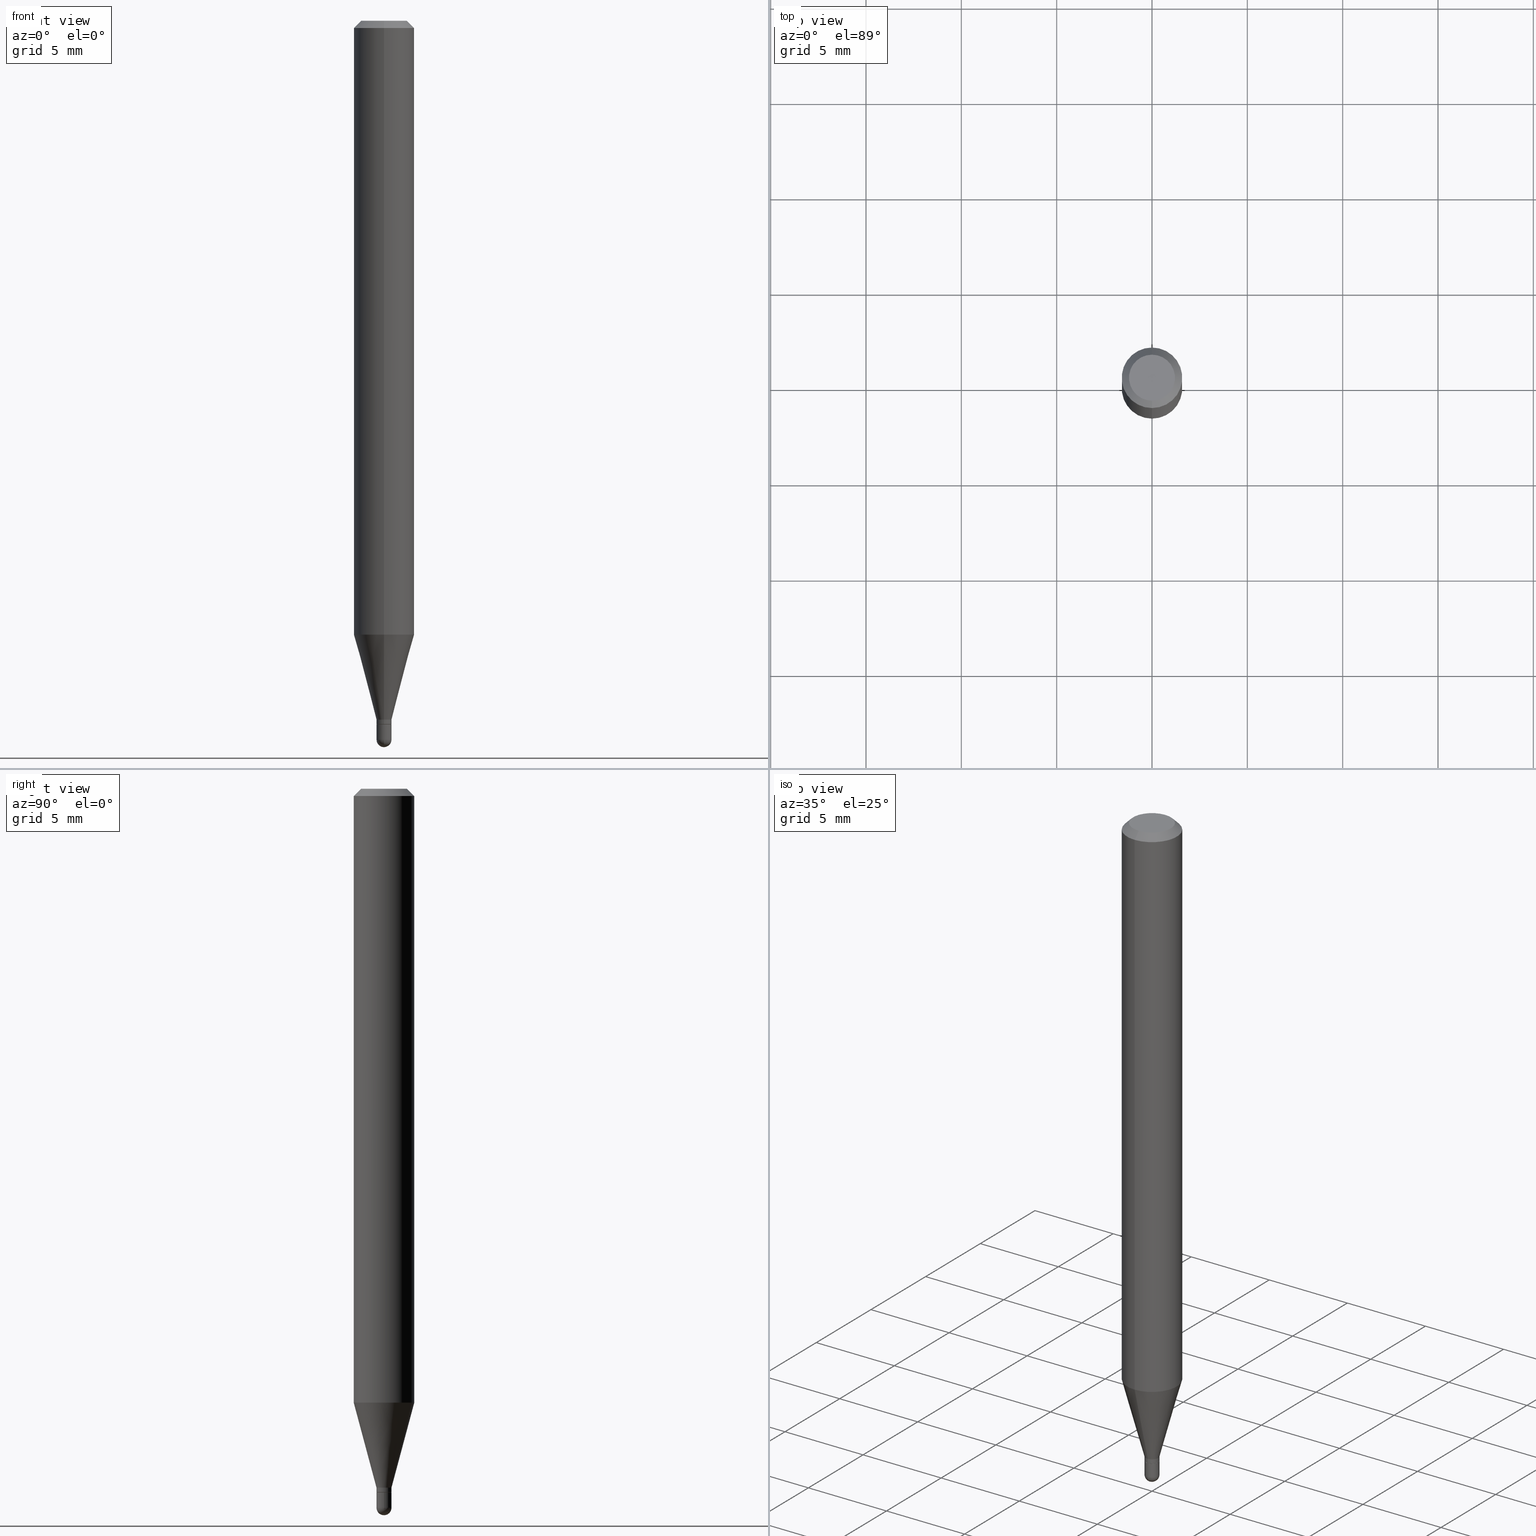
[diagram: canonical four-view strip — front | top / right | iso, engineering-drawing reading convention]
A machine part, canonical four-view strip (front | top / right | iso — engineering-drawing reading convention). The complete STEP part file that produces these views, byte-faithful:
ISO-10303-21;
HEADER;
FILE_DESCRIPTION (( 'STEP AP203' ),
    '1' );
FILE_NAME ('00766.STEP',
    '2024-03-07T18:15:39',
    ( '' ),
    ( '' ),
    'SwSTEP 2.0',
    'SolidWorks 2023',
    '' );
FILE_SCHEMA (( 'CONFIG_CONTROL_DESIGN' ));
ENDSEC;

DATA;
#1 = CARTESIAN_POINT ( 'NONE',  ( 3.553266175387003417E-29, -5.073122385339090530E-15, -1.453000000000000069 ) ) ;
#2 = DIRECTION ( 'NONE',  ( -2.445476860910062306E-29, 3.491469804018605313E-15, 1.000000000000000000 ) ) ;
#3 = ADVANCED_FACE ( 'NONE', ( #158 ), #403, .T. ) ;
#4 = VERTEX_POINT ( 'NONE', #122 ) ;
#5 = CARTESIAN_POINT ( 'NONE',  ( 3.553277878902321021E-29, -5.073105625239033642E-15, -1.453000000000000069 ) ) ;
#6 = LENGTH_MEASURE_WITH_UNIT ( LENGTH_MEASURE( 0.02539999999999999897 ), #195 );
#7 = DIRECTION ( 'NONE',  ( -6.982962677686265922E-15, -1.000000000000000000, 3.483106191921935554E-15 ) ) ;
#8 = DIRECTION ( 'NONE',  ( -2.445476860910062306E-29, 3.491469804018605313E-15, 1.000000000000000000 ) ) ;
#9 = CARTESIAN_POINT ( 'NONE',  ( 3.840629472727447874E-16, 0.04749999999999999362, -1.747056831868805136E-16 ) ) ;
#10 = AXIS2_PLACEMENT_3D ( 'NONE', #53, #494, #450 ) ;
#11 = EDGE_CURVE ( 'NONE', #301, #433, #381, .T. ) ;
#12 = ORIENTED_EDGE ( 'NONE', *, *, #257, .T. ) ;
#13 = FACE_OUTER_BOUND ( 'NONE', #314, .T. ) ;
#14 = CARTESIAN_POINT ( 'NONE',  ( -4.364351673553606573E-16, -0.06250000000000442701, -1.267593612044263018 ) ) ;
#15 = ADVANCED_BREP_SHAPE_REPRESENTATION ( '00766', ( #234, #230, #70 ), #343 ) ;
#16 = EDGE_LOOP ( 'NONE', ( #113, #32, #165, #470 ) ) ;
#17 = AXIS2_PLACEMENT_3D ( 'NONE', #405, #357, #167 ) ;
#18 = AXIS2_PLACEMENT_3D ( 'NONE', #487, #2, #157 ) ;
#19 = CARTESIAN_POINT ( 'NONE',  ( 0.000000000000000000, 0.000000000000000000, 0.000000000000000000 ) ) ;
#20 = CARTESIAN_POINT ( 'NONE',  ( -1.082359215041012724E-16, -0.01550000000000495946, -1.443000000000000060 ) ) ;
#21 = DIRECTION ( 'NONE',  ( -7.105427357601001070E-15, -1.000000000000000000, 0.000000000000000000 ) ) ;
#22 = EDGE_CURVE ( 'NONE', #152, #175, #123, .T. ) ;
#23 = APPROVAL_ROLE ( '' ) ;
#24 = DIRECTION ( 'NONE',  ( -4.851104656540964275E-15, -0.7071067811865500152, -0.7071067811865450192 ) ) ;
#25 = AXIS2_PLACEMENT_3D ( 'NONE', #283, #396, #440 ) ;
#26 = ADVANCED_FACE ( 'NONE', ( #83 ), #323, .T. ) ;
#27 = EDGE_LOOP ( 'NONE', ( #286, #481, #264, #445 ) ) ;
#28 = ADVANCED_FACE ( 'NONE', ( #366 ), #188, .T. ) ;
#29 = ORIENTED_EDGE ( 'NONE', *, *, #376, .T. ) ;
#30 = CONICAL_SURFACE ( 'NONE', #18, 0.01499999999999999944, 0.7853981633974739252 ) ;
#31 = CARTESIAN_POINT ( 'NONE',  ( 1.082359215041726397E-16, 0.01549999999999492582, -1.453000000000000069 ) ) ;
#32 = ORIENTED_EDGE ( 'NONE', *, *, #468, .T. ) ;
#33 = LINE ( 'NONE', #37, #90 ) ;
#34 = DIRECTION ( 'NONE',  ( -2.445468806185136877E-29, 3.491481338843145188E-15, 1.000000000000000000 ) ) ;
#35 = AXIS2_PLACEMENT_3D ( 'NONE', #5, #315, #504 ) ;
#36 = ORIENTED_EDGE ( 'NONE', *, *, #395, .T. ) ;
#37 = CARTESIAN_POINT ( 'NONE',  ( 0.01549999999999999989, -1.082359215041371286E-16, 7.558074002483699918E-31 ) ) ;
#38 = CARTESIAN_POINT ( 'NONE',  ( 3.528823110293220538E-29, -5.038190927198847774E-15, -1.443000000000000060 ) ) ;
#39 = FACE_OUTER_BOUND ( 'NONE', #503, .T. ) ;
#40 = DIRECTION ( 'NONE',  ( -6.982962677686265922E-15, -1.000000000000000000, 0.000000000000000000 ) ) ;
#41 = CARTESIAN_POINT ( 'NONE',  ( 4.440892098500625669E-16, 0.06250000000000000000, -2.182168627511628321E-16 ) ) ;
#42 = AXIS2_PLACEMENT_3D ( 'NONE', #486, #169, #397 ) ;
#43 = LINE ( 'NONE', #334, #114 ) ;
#44 = AXIS2_PLACEMENT_3D ( 'NONE', #1, #185, #309 ) ;
#45 = ADVANCED_FACE ( 'NONE', ( #39 ), #284, .T. ) ;
#46 = ORIENTED_EDGE ( 'NONE', *, *, #455, .F. ) ;
#47 = CC_DESIGN_DATE_AND_TIME_ASSIGNMENT ( #380, #491, ( #474 ) ) ;
#48 = DIRECTION ( 'NONE',  ( -2.445468806185136597E-29, 3.491481338843145583E-15, 1.000000000000000000 ) ) ;
#49 = DIRECTION ( 'NONE',  ( 1.000000000000000000, -6.982962677686266711E-15, 4.876176775795935232E-29 ) ) ;
#50 = DIRECTION ( 'NONE',  ( -2.445476860910062306E-29, 3.491469804018605313E-15, 1.000000000000000000 ) ) ;
#51 = SECURITY_CLASSIFICATION_LEVEL ( 'unclassified' ) ;
#52 = CARTESIAN_POINT ( 'NONE',  ( 4.440892098500937762E-16, 0.06249999999999993755, -0.01500000000000022669 ) ) ;
#53 = CARTESIAN_POINT ( 'NONE',  ( 3.528823110293220538E-29, -5.038190927198847774E-15, -1.443000000000000060 ) ) ;
#54 = EDGE_LOOP ( 'NONE', ( #453, #105, #467, #135 ) ) ;
#55 = CARTESIAN_POINT ( 'NONE',  ( 3.628972935033607816E-29, -5.185002250051328055E-15, -1.484500000000000153 ) ) ;
#56 = CIRCLE ( 'NONE', #145, 0.01549999999999999989 ) ;
#57 = ORIENTED_EDGE ( 'NONE', *, *, #413, .T. ) ;
#58 = UNCERTAINTY_MEASURE_WITH_UNIT (LENGTH_MEASURE( 1.000000000000000082E-05 ), #103, 'distance_accuracy_value', 'NONE');
#59 = PERSON_AND_ORGANIZATION ( #479, #181 ) ;
#60 = ORIENTED_EDGE ( 'NONE', *, *, #413, .F. ) ;
#61 = SPHERICAL_SURFACE ( 'NONE', #320, 0.01549999999999993917 ) ;
#62 = AXIS2_PLACEMENT_3D ( 'NONE', #147, #352, #71 ) ;
#63 = CC_DESIGN_PERSON_AND_ORGANIZATION_ASSIGNMENT ( #59, #407, ( #474 ) ) ;
#64 = AXIS2_PLACEMENT_3D ( 'NONE', #202, #89, #192 ) ;
#65 = LOCAL_TIME ( 13, 15, 39.00000000000000000, #295 ) ;
#66 = EDGE_LOOP ( 'NONE', ( #216, #506 ) ) ;
#67 = VERTEX_POINT ( 'NONE', #441 ) ;
#68 = CLOSED_SHELL ( 'NONE', ( #45, #28, #434, #26, #505, #411, #3, #313, #336, #177, #480, #306 ) ) ;
#69 = ORIENTED_EDGE ( 'NONE', *, *, #442, .T. ) ;
#70 = AXIS2_PLACEMENT_3D ( 'NONE', #446, #260, #448 ) ;
#71 = DIRECTION ( 'NONE',  ( 1.000000000000000000, -6.982962677686238312E-15, 0.000000000000000000 ) ) ;
#72 = EDGE_LOOP ( 'NONE', ( #225, #29 ) ) ;
#73 = CARTESIAN_POINT ( 'NONE',  ( 2.771116669464720070E-16, 0.01549999999999487899, -1.443000000000000060 ) ) ;
#74 = APPLICATION_CONTEXT ( 'configuration controlled 3d designs of mechanical parts and assemblies' ) ;
#75 = EDGE_CURVE ( 'NONE', #189, #268, #510, .T. ) ;
#76 = DIRECTION ( 'NONE',  ( 5.024295867788190974E-15, 0.7071067811865681119, 0.7071067811865270336 ) ) ;
#77 = EDGE_LOOP ( 'NONE', ( #179, #281, #418, #346 ) ) ;
#78 = VECTOR ( 'NONE', #345, 39.37007874015748143 ) ;
#79 = EDGE_CURVE ( 'NONE', #307, #152, #438, .T. ) ;
#80 = CARTESIAN_POINT ( 'NONE',  ( -1.082359215041012724E-16, -0.01550000000000495946, -1.443000000000000060 ) ) ;
#81 = CIRCLE ( 'NONE', #350, 0.01549999999999999989 ) ;
#82 = FACE_OUTER_BOUND ( 'NONE', #27, .T. ) ;
#83 = FACE_OUTER_BOUND ( 'NONE', #210, .T. ) ;
#84 = FACE_OUTER_BOUND ( 'NONE', #54, .T. ) ;
#85 = ORIENTED_EDGE ( 'NONE', *, *, #94, .T. ) ;
#86 = DIRECTION ( 'NONE',  ( -6.982962677686265922E-15, -1.000000000000000000, 0.000000000000000000 ) ) ;
#87 = CYLINDRICAL_SURFACE ( 'NONE', #296, 0.01549999999999999989 ) ;
#88 = LINE ( 'NONE', #401, #319 ) ;
#89 = DIRECTION ( 'NONE',  ( -2.445476860910062306E-29, 3.491469804018605313E-15, 1.000000000000000000 ) ) ;
#90 = VECTOR ( 'NONE', #34, 39.37007874015748143 ) ;
#91 = LOCAL_TIME ( 13, 15, 39.00000000000000000, #377 ) ;
#92 = ORIENTED_EDGE ( 'NONE', *, *, #22, .T. ) ;
#93 = APPLICATION_PROTOCOL_DEFINITION ( 'international standard', 'config_control_design', 1994, #231 ) ;
#94 = EDGE_CURVE ( 'NONE', #278, #299, #88, .T. ) ;
#95 = DIRECTION ( 'NONE',  ( -2.445476860910062306E-29, 3.491469804018605313E-15, 1.000000000000000000 ) ) ;
#96 = PERSON_AND_ORGANIZATION_ROLE ( 'creator' ) ;
#97 = DIRECTION ( 'NONE',  ( -2.445468806185136597E-29, 3.491481338843145583E-15, 1.000000000000000000 ) ) ;
#98 = APPROVAL_STATUS ( 'not_yet_approved' ) ;
#99 = CARTESIAN_POINT ( 'NONE',  ( -1.047444401652584625E-16, -0.01500000000000507351, -1.453000000000000069 ) ) ;
#100 = CC_DESIGN_APPROVAL ( #465, ( #488 ) ) ;
#101 = DIRECTION ( 'NONE',  ( -2.445468806185136597E-29, 3.491481338843145583E-15, 1.000000000000000000 ) ) ;
#102 = ORIENTED_EDGE ( 'NONE', *, *, #244, .F. ) ;
#103 =( CONVERSION_BASED_UNIT ( 'INCH', #6 ) LENGTH_UNIT ( ) NAMED_UNIT ( #353 ) );
#104 = DIRECTION ( 'NONE',  ( 6.982962677686265922E-15, 1.000000000000000000, 0.000000000000000000 ) ) ;
#105 = ORIENTED_EDGE ( 'NONE', *, *, #417, .T. ) ;
#106 = SHAPE_DEFINITION_REPRESENTATION ( #316, #15 ) ;
#107 = CLOSED_SHELL ( 'NONE', ( #109, #149, #196, #348, #116 ) ) ;
#108 = VECTOR ( 'NONE', #406, 39.37007874015748143 ) ;
#109 = ADVANCED_FACE ( 'NONE', ( #13 ), #293, .T. ) ;
#110 = VERTEX_POINT ( 'NONE', #332 ) ;
#111 = CARTESIAN_POINT ( 'NONE',  ( -4.364351673553912750E-16, -0.06250000000000005551, -0.01499999999999979128 ) ) ;
#112 = LINE ( 'NONE', #80, #78 ) ;
#113 = ORIENTED_EDGE ( 'NONE', *, *, #473, .F. ) ;
#114 = VECTOR ( 'NONE', #24, 39.37007874015748143 ) ;
#115 = CARTESIAN_POINT ( 'NONE',  ( 0.000000000000000000, 0.000000000000000000, 0.000000000000000000 ) ) ;
#116 = ADVANCED_FACE ( 'NONE', ( #137 ), #87, .T. ) ;
#117 = EDGE_LOOP ( 'NONE', ( #291, #259, #193, #261 ) ) ;
#118 = PLANE ( 'NONE',  #399 ) ;
#119 = CC_DESIGN_PERSON_AND_ORGANIZATION_ASSIGNMENT ( #414, #298, ( #203 ) ) ;
#120 = CYLINDRICAL_SURFACE ( 'NONE', #472, 0.01549999999999992183 ) ;
#121 = CARTESIAN_POINT ( 'NONE',  ( 3.630298442781836457E-29, -5.183104047512650777E-15, -1.484500000000000597 ) ) ;
#122 = CARTESIAN_POINT ( 'NONE',  ( -1.101341240427790062E-16, -0.01550000000000515375, -1.484500000000000597 ) ) ;
#123 = CIRCLE ( 'NONE', #212, 0.06250000000000000000 ) ;
#124 = CARTESIAN_POINT ( 'NONE',  ( 4.440892098500932831E-16, 0.06249999999999554523, -1.267593612044263462 ) ) ;
#125 = AXIS2_PLACEMENT_3D ( 'NONE', #279, #425, #429 ) ;
#126 = CC_DESIGN_APPROVAL ( #143, ( #203 ) ) ;
#127 = DIRECTION ( 'NONE',  ( -2.445476860910062306E-29, 3.491469804018605313E-15, 1.000000000000000000 ) ) ;
#128 = EDGE_CURVE ( 'NONE', #301, #4, #443, .T. ) ;
#129 = DIRECTION ( 'NONE',  ( -6.982962677686265922E-15, -1.000000000000000000, 0.000000000000000000 ) ) ;
#130 = ORIENTED_EDGE ( 'NONE', *, *, #324, .T. ) ;
#131 = DIRECTION ( 'NONE',  ( -6.982962677686266711E-15, -1.000000000000000000, 3.491469804018605313E-15 ) ) ;
#132 = COORDINATED_UNIVERSAL_TIME_OFFSET ( 5, 0, .BEHIND. ) ;
#133 = CIRCLE ( 'NONE', #10, 0.01549999999999992009 ) ;
#134 = EDGE_CURVE ( 'NONE', #189, #239, #252, .T. ) ;
#135 = ORIENTED_EDGE ( 'NONE', *, *, #423, .F. ) ;
#136 = APPROVAL_ROLE ( '' ) ;
#137 = FACE_OUTER_BOUND ( 'NONE', #249, .T. ) ;
#138 = DATE_AND_TIME ( #335, #140 ) ;
#139 = CARTESIAN_POINT ( 'NONE',  ( 3.628972935033607816E-29, -5.185002250051328055E-15, -1.484500000000000153 ) ) ;
#140 = LOCAL_TIME ( 13, 15, 39.00000000000000000, #289 ) ;
#141 = ORIENTED_EDGE ( 'NONE', *, *, #468, .F. ) ;
#142 = DATE_AND_TIME ( #454, #65 ) ;
#143 = APPROVAL ( #262, 'UNSPECIFIED' ) ;
#144 = VECTOR ( 'NONE', #362, 39.37007874015748143 ) ;
#145 = AXIS2_PLACEMENT_3D ( 'NONE', #121, #430, #325 ) ;
#146 = ORIENTED_EDGE ( 'NONE', *, *, #461, .T. ) ;
#147 = CARTESIAN_POINT ( 'NONE',  ( 3.630298442781836457E-29, -5.183104047512650777E-15, -1.484500000000000597 ) ) ;
#148 = ORIENTED_EDGE ( 'NONE', *, *, #134, .F. ) ;
#149 = ADVANCED_FACE ( 'NONE', ( #365 ), #209, .T. ) ;
#150 = CARTESIAN_POINT ( 'NONE',  ( 2.166904642905017015E-46, -3.093745129968265036E-32, -8.860867495996763606E-18 ) ) ;
#151 = AXIS2_PLACEMENT_3D ( 'NONE', #485, #253, #329 ) ;
#152 = VERTEX_POINT ( 'NONE', #52 ) ;
#153 = AXIS2_PLACEMENT_3D ( 'NONE', #369, #155, #341 ) ;
#154 = FACE_OUTER_BOUND ( 'NONE', #388, .T. ) ;
#155 = DIRECTION ( 'NONE',  ( -2.445476860910062306E-29, 3.491469804018605313E-15, 1.000000000000000000 ) ) ;
#156 = FACE_OUTER_BOUND ( 'NONE', #72, .T. ) ;
#157 = DIRECTION ( 'NONE',  ( -6.982962677686265922E-15, -1.000000000000000000, 0.000000000000000000 ) ) ;
#158 = FACE_OUTER_BOUND ( 'NONE', #117, .T. ) ;
#159 = FACE_OUTER_BOUND ( 'NONE', #16, .T. ) ;
#160 = CARTESIAN_POINT ( 'NONE',  ( 3.528823110293220538E-29, -5.038190927198847774E-15, -1.443000000000000060 ) ) ;
#161 = ORIENTED_EDGE ( 'NONE', *, *, #134, .T. ) ;
#162 = AXIS2_PLACEMENT_3D ( 'NONE', #371, #50, #317 ) ;
#163 = AXIS2_PLACEMENT_3D ( 'NONE', #394, #358, #40 ) ;
#164 = DIRECTION ( 'NONE',  ( 2.445476860910062306E-29, -3.491469804018605313E-15, -1.000000000000000000 ) ) ;
#165 = ORIENTED_EDGE ( 'NONE', *, *, #227, .T. ) ;
#166 = FACE_OUTER_BOUND ( 'NONE', #236, .T. ) ;
#167 = DIRECTION ( 'NONE',  ( -6.982962677686265922E-15, -1.000000000000000000, 3.491469804018605313E-15 ) ) ;
#168 = CARTESIAN_POINT ( 'NONE',  ( 1.101341240428149610E-16, 0.01549999999999992183, -5.411778196228810980E-17 ) ) ;
#169 = DIRECTION ( 'NONE',  ( 1.000000000000000000, -6.982962677686265922E-15, 4.883557194083112340E-29 ) ) ;
#170 = CALENDAR_DATE ( 2024, 7, 3 ) ;
#171 = CIRCLE ( 'NONE', #265, 0.01549999999999999989 ) ;
#172 = DIRECTION ( 'NONE',  ( -2.445468806185136597E-29, 3.491481338843145583E-15, 1.000000000000000000 ) ) ;
#173 = PERSON_AND_ORGANIZATION_ROLE ( 'design_owner' ) ;
#174 = DIRECTION ( 'NONE',  ( -4.937700262164674260E-15, -0.7071067811865632269, 0.7071067811865319186 ) ) ;
#175 = VERTEX_POINT ( 'NONE', #111 ) ;
#176 = DESIGN_CONTEXT ( 'detailed design', #74, 'design' ) ;
#177 = ADVANCED_FACE ( 'NONE', ( #497 ), #118, .F. ) ;
#178 = CIRCLE ( 'NONE', #297, 0.04749999999999999362 ) ;
#179 = ORIENTED_EDGE ( 'NONE', *, *, #128, .F. ) ;
#180 = EDGE_CURVE ( 'NONE', #67, #433, #462, .T. ) ;
#181 = ORGANIZATION ( 'UNSPECIFIED', 'UNSPECIFIED', '' ) ;
#182 = EDGE_LOOP ( 'NONE', ( #60, #475, #456, #92 ) ) ;
#183 = DIRECTION ( 'NONE',  ( 2.438088387897960049E-29, -3.491481338843145188E-15, -1.000000000000000000 ) ) ;
#184 = EDGE_LOOP ( 'NONE', ( #273, #57, #36, #495 ) ) ;
#185 = DIRECTION ( 'NONE',  ( -2.445468806185136597E-29, 3.491481338843145583E-15, 1.000000000000000000 ) ) ;
#186 = CC_DESIGN_DATE_AND_TIME_ASSIGNMENT ( #138, #375, ( #488 ) ) ;
#187 = DIRECTION ( 'NONE',  ( -2.445476860910062306E-29, 3.491469804018605313E-15, 1.000000000000000000 ) ) ;
#188 = CONICAL_SURFACE ( 'NONE', #151, 0.01499999999999999944, 0.7853981633974739252 ) ;
#189 = VERTEX_POINT ( 'NONE', #385 ) ;
#190 = VECTOR ( 'NONE', #328, 39.37007874015748143 ) ;
#191 = CARTESIAN_POINT ( 'NONE',  ( -4.364351673553916201E-16, -0.06250000000000000000, 2.182168627511628321E-16 ) ) ;
#192 = DIRECTION ( 'NONE',  ( -6.982962677686265922E-15, -1.000000000000000000, 0.000000000000000000 ) ) ;
#193 = ORIENTED_EDGE ( 'NONE', *, *, #215, .T. ) ;
#194 = PLANE ( 'NONE',  #400 ) ;
#195 =( LENGTH_UNIT ( ) NAMED_UNIT ( * ) SI_UNIT ( $, .METRE. ) );
#196 = ADVANCED_FACE ( 'NONE', ( #156 ), #308, .F. ) ;
#197 = CARTESIAN_POINT ( 'NONE',  ( 3.099870847291652545E-29, -4.425764820219419566E-15, -1.267593612044263240 ) ) ;
#198 = CARTESIAN_POINT ( 'NONE',  ( 0.000000000000000000, 0.000000000000000000, 0.000000000000000000 ) ) ;
#199 = ORIENTED_EDGE ( 'NONE', *, *, #384, .T. ) ;
#200 = CIRCLE ( 'NONE', #35, 0.01499999999999999944 ) ;
#201 = CONICAL_SURFACE ( 'NONE', #444, 0.06250000000000000000, 0.7853981633974483900 ) ;
#202 = CARTESIAN_POINT ( 'NONE',  ( 3.552055140471866165E-29, -5.071359890337024703E-15, -1.452500000000000124 ) ) ;
#203 = PRODUCT_DEFINITION_FORMATION_WITH_SPECIFIED_SOURCE ( 'ANY', '', #477, .NOT_KNOWN. ) ;
#204 = EDGE_CURVE ( 'NONE', #268, #189, #200, .T. ) ;
#205 = CARTESIAN_POINT ( 'NONE',  ( 3.668215291365095649E-31, -5.237204706027911593E-17, -0.01500000000000000812 ) ) ;
#206 = DIRECTION ( 'NONE',  ( -2.445468806185136597E-29, 3.491481338843145583E-15, 1.000000000000000000 ) ) ;
#207 = DIRECTION ( 'NONE',  ( -6.982962677686265922E-15, -1.000000000000000000, 3.483106191921935554E-15 ) ) ;
#208 = PERSON_AND_ORGANIZATION ( #479, #181 ) ;
#209 = SPHERICAL_SURFACE ( 'NONE', #498, 0.01549999999999993917 ) ;
#210 = EDGE_LOOP ( 'NONE', ( #199, #391, #490, #351 ) ) ;
#211 = APPLICATION_PROTOCOL_DEFINITION ( 'international standard', 'config_control_design', 1994, #74 ) ;
#212 = AXIS2_PLACEMENT_3D ( 'NONE', #205, #95, #207 ) ;
#213 = CONICAL_SURFACE ( 'NONE', #373, 0.01549999999999992009, 0.2617993877991502960 ) ;
#214 = MECHANICAL_CONTEXT ( 'NONE', #231, 'mechanical' ) ;
#215 = EDGE_CURVE ( 'NONE', #463, #175, #509, .T. ) ;
#216 = ORIENTED_EDGE ( 'NONE', *, *, #75, .F. ) ;
#217 = CARTESIAN_POINT ( 'NONE',  ( 4.364351673553919652E-16, 0.06249999999999995143, -0.01500000000000022669 ) ) ;
#218 = CIRCLE ( 'NONE', #64, 0.01549999999999992530 ) ;
#219 = EDGE_CURVE ( 'NONE', #383, #463, #112, .T. ) ;
#220 = CC_DESIGN_PERSON_AND_ORGANIZATION_ASSIGNMENT ( #255, #331, ( #203 ) ) ;
#221 = DIRECTION ( 'NONE',  ( -6.982962677686265922E-15, -1.000000000000000000, 3.491469804018605313E-15 ) ) ;
#222 = AXIS2_PLACEMENT_3D ( 'NONE', #19, #172, #492 ) ;
#223 = CIRCLE ( 'NONE', #266, 0.06250000000000000000 ) ;
#224 = APPROVAL_PERSON_ORGANIZATION ( #496, #143, #23 ) ;
#225 = ORIENTED_EDGE ( 'NONE', *, *, #244, .T. ) ;
#226 = DIRECTION ( 'NONE',  ( 6.982962677686265922E-15, 1.000000000000000000, -3.491469804018605313E-15 ) ) ;
#227 = EDGE_CURVE ( 'NONE', #239, #383, #347, .T. ) ;
#228 = APPROVAL_DATE_TIME ( #459, #250 ) ;
#229 = DIRECTION ( 'NONE',  ( -2.445476860910062026E-29, 3.491469804018605313E-15, 1.000000000000000000 ) ) ;
#230 = MANIFOLD_SOLID_BREP ( 'Body-Move/Copy2[2]', #68 ) ;
#231 = APPLICATION_CONTEXT ( 'configuration controlled 3d designs of mechanical parts and assemblies' ) ;
#232 = CARTESIAN_POINT ( 'NONE',  ( 1.065814103640505473E-16, 0.01499999999999492711, -1.453000000000000069 ) ) ;
#233 = CARTESIAN_POINT ( 'NONE',  ( 1.082359215041732067E-16, 0.01549999999999478531, -1.484500000000000597 ) ) ;
#234 = MANIFOLD_SOLID_BREP ( 'Body-Move/Copy2[1]', #107 ) ;
#235 = VECTOR ( 'NONE', #229, 39.37007874015748143 ) ;
#236 = EDGE_LOOP ( 'NONE', ( #267, #419, #161, #141 ) ) ;
#237 = CC_DESIGN_APPROVAL ( #250, ( #474 ) ) ;
#238 = DIRECTION ( 'NONE',  ( -2.445476860910062306E-29, 3.491469804018605313E-15, 1.000000000000000000 ) ) ;
#239 = VERTEX_POINT ( 'NONE', #478 ) ;
#240 = DIRECTION ( 'NONE',  ( 6.982962677686265922E-15, 1.000000000000000000, -3.483106191921935554E-15 ) ) ;
#241 = VERTEX_POINT ( 'NONE', #73 ) ;
#242 = CARTESIAN_POINT ( 'NONE',  ( 3.630298442781836457E-29, -5.183104047512650777E-15, -1.484500000000000597 ) ) ;
#243 = CARTESIAN_POINT ( 'NONE',  ( 0.000000000000000000, 0.000000000000000000, 0.000000000000000000 ) ) ;
#244 = EDGE_CURVE ( 'NONE', #110, #299, #431, .T. ) ;
#245 = DIRECTION ( 'NONE',  ( -6.982962677686265922E-15, -1.000000000000000000, 0.000000000000000000 ) ) ;
#246 = LINE ( 'NONE', #168, #190 ) ;
#247 = LOCAL_TIME ( 13, 15, 39.00000000000000000, #292 ) ;
#248 = CC_DESIGN_PERSON_AND_ORGANIZATION_ASSIGNMENT ( #409, #96, ( #488 ) ) ;
#249 = EDGE_LOOP ( 'NONE', ( #337, #69, #146, #12, #269 ) ) ;
#250 = APPROVAL ( #368, 'UNSPECIFIED' ) ;
#251 =( NAMED_UNIT ( * ) SI_UNIT ( $, .STERADIAN. ) SOLID_ANGLE_UNIT ( ) );
#252 = LINE ( 'NONE', #99, #421 ) ;
#253 = DIRECTION ( 'NONE',  ( -2.445476860910062306E-29, 3.491469804018605313E-15, 1.000000000000000000 ) ) ;
#254 = CARTESIAN_POINT ( 'NONE',  ( 1.101341240428502379E-16, 0.01549999999999488072, -1.443000000000000060 ) ) ;
#255 = PERSON_AND_ORGANIZATION ( #479, #181 ) ;
#256 = APPROVAL_ROLE ( '' ) ;
#257 = EDGE_CURVE ( 'NONE', #67, #110, #33, .T. ) ;
#258 = LOCAL_TIME ( 13, 15, 39.00000000000000000, #132 ) ;
#259 = ORIENTED_EDGE ( 'NONE', *, *, #423, .T. ) ;
#260 = DIRECTION ( 'NONE',  ( 0.000000000000000000, 0.000000000000000000, 1.000000000000000000 ) ) ;
#261 = ORIENTED_EDGE ( 'NONE', *, *, #22, .F. ) ;
#262 = APPROVAL_STATUS ( 'not_yet_approved' ) ;
#263 = EDGE_CURVE ( 'NONE', #379, #512, #178, .T. ) ;
#264 = ORIENTED_EDGE ( 'NONE', *, *, #384, .F. ) ;
#265 = AXIS2_PLACEMENT_3D ( 'NONE', #501, #101, #367 ) ;
#266 = AXIS2_PLACEMENT_3D ( 'NONE', #280, #398, #7 ) ;
#267 = ORIENTED_EDGE ( 'NONE', *, *, #282, .F. ) ;
#268 = VERTEX_POINT ( 'NONE', #270 ) ;
#269 = ORIENTED_EDGE ( 'NONE', *, *, #376, .F. ) ;
#270 = CARTESIAN_POINT ( 'NONE',  ( 1.083577672034505159E-16, 0.01499999999999492711, -1.453000000000000069 ) ) ;
#271 = AXIS2_PLACEMENT_3D ( 'NONE', #160, #437, #129 ) ;
#272 = CARTESIAN_POINT ( 'NONE',  ( 1.101341240428501270E-16, 0.01549999999999480092, -1.452500000000000124 ) ) ;
#273 = ORIENTED_EDGE ( 'NONE', *, *, #263, .F. ) ;
#274 = DIRECTION ( 'NONE',  ( -1.000000000000000000, 6.982962677686265922E-15, -4.876176775795935793E-29 ) ) ;
#275 = CARTESIAN_POINT ( 'NONE',  ( 3.630298442781836457E-29, -5.183104047512650777E-15, -1.484500000000000597 ) ) ;
#276 = ORIENTED_EDGE ( 'NONE', *, *, #500, .T. ) ;
#277 = FACE_OUTER_BOUND ( 'NONE', #182, .T. ) ;
#278 = VERTEX_POINT ( 'NONE', #420 ) ;
#279 = CARTESIAN_POINT ( 'NONE',  ( 3.668215291365095649E-31, -5.237204706027911593E-17, -0.01500000000000000812 ) ) ;
#280 = CARTESIAN_POINT ( 'NONE',  ( 3.668215291365095649E-31, -5.237204706027911593E-17, -0.01500000000000000812 ) ) ;
#281 = ORIENTED_EDGE ( 'NONE', *, *, #11, .T. ) ;
#282 = EDGE_CURVE ( 'NONE', #268, #311, #427, .T. ) ;
#283 = CARTESIAN_POINT ( 'NONE',  ( 3.528823110293220538E-29, -5.038190927198847774E-15, -1.443000000000000060 ) ) ;
#284 = CYLINDRICAL_SURFACE ( 'NONE', #302, 0.01549999999999992183 ) ;
#285 = CC_DESIGN_PERSON_AND_ORGANIZATION_ASSIGNMENT ( #294, #173, ( #477 ) ) ;
#286 = ORIENTED_EDGE ( 'NONE', *, *, #402, .T. ) ;
#287 = AXIS2_PLACEMENT_3D ( 'NONE', #321, #127, #245 ) ;
#288 = AXIS2_PLACEMENT_3D ( 'NONE', #275, #48, #363 ) ;
#289 = COORDINATED_UNIVERSAL_TIME_OFFSET ( 5, 0, .BEHIND. ) ;
#290 = DIRECTION ( 'NONE',  ( -1.000000000000000000, 7.105427357601001070E-15, -4.926315508542082329E-29 ) ) ;
#291 = ORIENTED_EDGE ( 'NONE', *, *, #79, .F. ) ;
#292 = COORDINATED_UNIVERSAL_TIME_OFFSET ( 5, 0, .BEHIND. ) ;
#293 = CYLINDRICAL_SURFACE ( 'NONE', #222, 0.01549999999999999989 ) ;
#294 = PERSON_AND_ORGANIZATION ( #479, #181 ) ;
#295 = COORDINATED_UNIVERSAL_TIME_OFFSET ( 5, 0, .BEHIND. ) ;
#296 = AXIS2_PLACEMENT_3D ( 'NONE', #243, #97, #49 ) ;
#297 = AXIS2_PLACEMENT_3D ( 'NONE', #150, #471, #386 ) ;
#298 = PERSON_AND_ORGANIZATION_ROLE ( 'design_supplier' ) ;
#299 = VERTEX_POINT ( 'NONE', #349 ) ;
#300 = DIRECTION ( 'NONE',  ( -1.000000000000000000, 6.982962677686265922E-15, -4.883557194083112340E-29 ) ) ;
#301 = VERTEX_POINT ( 'NONE', #355 ) ;
#302 = AXIS2_PLACEMENT_3D ( 'NONE', #198, #8, #131 ) ;
#303 = AXIS2_PLACEMENT_3D ( 'NONE', #197, #326, #356 ) ;
#304 = ORIENTED_EDGE ( 'NONE', *, *, #473, .T. ) ;
#305 = CARTESIAN_POINT ( 'NONE',  ( 3.628972935033607816E-29, -5.185002250051328055E-15, -1.484500000000000153 ) ) ;
#306 = ADVANCED_FACE ( 'NONE', ( #159 ), #120, .T. ) ;
#307 = VERTEX_POINT ( 'NONE', #124 ) ;
#308 = PLANE ( 'NONE',  #489 ) ;
#309 = DIRECTION ( 'NONE',  ( 1.000000000000000000, -6.982962677686238312E-15, 0.000000000000000000 ) ) ;
#310 = CIRCLE ( 'NONE', #271, 0.01549999999999992009 ) ;
#311 = VERTEX_POINT ( 'NONE', #272 ) ;
#312 = CARTESIAN_POINT ( 'NONE',  ( 3.316907271900976096E-16, 0.04749999999999999362, -1.702752494388820995E-16 ) ) ;
#313 = ADVANCED_FACE ( 'NONE', ( #277 ), #422, .T. ) ;
#314 = EDGE_LOOP ( 'NONE', ( #276, #85, #102, #428, #466 ) ) ;
#315 = DIRECTION ( 'NONE',  ( -2.445476860910062306E-29, 3.491469804018605313E-15, 1.000000000000000000 ) ) ;
#316 = PRODUCT_DEFINITION_SHAPE ( 'NONE', 'NONE',  #488 ) ;
#317 = DIRECTION ( 'NONE',  ( -6.982962677686265922E-15, -1.000000000000000000, 3.491469804018605313E-15 ) ) ;
#318 = DIRECTION ( 'NONE',  ( -2.445476860910062026E-29, 3.491469804018605313E-15, 1.000000000000000000 ) ) ;
#319 = VECTOR ( 'NONE', #364, 39.37007874015748143 ) ;
#320 = AXIS2_PLACEMENT_3D ( 'NONE', #139, #404, #104 ) ;
#321 = CARTESIAN_POINT ( 'NONE',  ( 3.553277878902321021E-29, -5.073105625239033642E-15, -1.453000000000000069 ) ) ;
#322 = DIRECTION ( 'NONE',  ( 1.000000000000000000, -6.982962677686238312E-15, 0.000000000000000000 ) ) ;
#323 = CYLINDRICAL_SURFACE ( 'NONE', #17, 0.06250000000000000000 ) ;
#324 = EDGE_CURVE ( 'NONE', #512, #379, #502, .T. ) ;
#325 = DIRECTION ( 'NONE',  ( 1.000000000000000000, -6.982962677686238312E-15, 0.000000000000000000 ) ) ;
#326 = DIRECTION ( 'NONE',  ( -2.445476860910062306E-29, 3.491469804018605313E-15, 1.000000000000000000 ) ) ;
#327 = ORIENTED_EDGE ( 'NONE', *, *, #11, .F. ) ;
#328 = DIRECTION ( 'NONE',  ( -2.445476860910062026E-29, 3.491469804018605313E-15, 1.000000000000000000 ) ) ;
#329 = DIRECTION ( 'NONE',  ( -6.982962677686265922E-15, -1.000000000000000000, 0.000000000000000000 ) ) ;
#330 = CC_DESIGN_SECURITY_CLASSIFICATION ( #474, ( #203 ) ) ;
#331 = PERSON_AND_ORGANIZATION_ROLE ( 'creator' ) ;
#332 = CARTESIAN_POINT ( 'NONE',  ( 0.01549999999999999989, -5.181358306843226907E-15, -1.453000000000000069 ) ) ;
#333 = DATE_AND_TIME ( #170, #258 ) ;
#334 = CARTESIAN_POINT ( 'NONE',  ( -4.287811248607203282E-16, -0.06250000000000005551, -0.01499999999999979128 ) ) ;
#335 = CALENDAR_DATE ( 2024, 7, 3 ) ;
#336 = ADVANCED_FACE ( 'NONE', ( #154 ), #194, .F. ) ;
#337 = ORIENTED_EDGE ( 'NONE', *, *, #94, .F. ) ;
#338 = APPROVAL_DATE_TIME ( #333, #465 ) ;
#339 = CONICAL_SURFACE ( 'NONE', #25, 0.01549999999999992009, 0.2617993877991502960 ) ;
#340 = DIRECTION ( 'NONE',  ( 4.937700262164548042E-15, 0.7071067811865451302, -0.7071067811865499042 ) ) ;
#341 = DIRECTION ( 'NONE',  ( -6.982962677686265922E-15, -1.000000000000000000, 4.370956789862821150E-15 ) ) ;
#342 = CALENDAR_DATE ( 2024, 7, 3 ) ;
#343 =( GEOMETRIC_REPRESENTATION_CONTEXT ( 3 ) GLOBAL_UNCERTAINTY_ASSIGNED_CONTEXT ( ( #58 ) ) GLOBAL_UNIT_ASSIGNED_CONTEXT ( ( #103, #493, #251 ) ) REPRESENTATION_CONTEXT ( 'NONE', 'WORKASPACE' ) );
#344 = ORIENTED_EDGE ( 'NONE', *, *, #455, .T. ) ;
#345 = DIRECTION ( 'NONE',  ( -1.807323732225330534E-15, -0.2588190451025182415, 0.9659258262890689783 ) ) ;
#346 = ORIENTED_EDGE ( 'NONE', *, *, #461, .F. ) ;
#347 = LINE ( 'NONE', #469, #370 ) ;
#348 = ADVANCED_FACE ( 'NONE', ( #476 ), #61, .T. ) ;
#349 = CARTESIAN_POINT ( 'NONE',  ( -0.01549999999999999989, -5.017979092383055422E-15, -1.453000000000000069 ) ) ;
#350 = AXIS2_PLACEMENT_3D ( 'NONE', #242, #206, #322 ) ;
#351 = ORIENTED_EDGE ( 'NONE', *, *, #215, .F. ) ;
#352 = DIRECTION ( 'NONE',  ( -2.445468806185136597E-29, 3.491481338843145583E-15, 1.000000000000000000 ) ) ;
#353 = DIMENSIONAL_EXPONENTS ( 1.000000000000000000, 0.000000000000000000, 0.000000000000000000, 0.000000000000000000, 0.000000000000000000, 0.000000000000000000, 0.000000000000000000 ) ;
#354 = EDGE_LOOP ( 'NONE', ( #426, #508, #46, #148 ) ) ;
#355 = CARTESIAN_POINT ( 'NONE',  ( 3.667540455403591135E-29, -5.238171109534057210E-15, -1.500000000000000222 ) ) ;
#356 = DIRECTION ( 'NONE',  ( -6.982962677686265922E-15, -1.000000000000000000, 4.370956789862821150E-15 ) ) ;
#357 = DIRECTION ( 'NONE',  ( -2.445476860910062306E-29, 3.491469804018605313E-15, 1.000000000000000000 ) ) ;
#358 = DIRECTION ( 'NONE',  ( -2.445476860910062306E-29, 3.491469804018605313E-15, 1.000000000000000000 ) ) ;
#359 = AXIS2_PLACEMENT_3D ( 'NONE', #55, #290, #21 ) ;
#360 = EDGE_CURVE ( 'NONE', #512, #152, #412, .T. ) ;
#361 = VECTOR ( 'NONE', #76, 39.37007874015748143 ) ;
#362 = DIRECTION ( 'NONE',  ( -2.445476860910062026E-29, 3.491469804018605313E-15, 1.000000000000000000 ) ) ;
#363 = DIRECTION ( 'NONE',  ( 1.000000000000000000, -6.982962677686238312E-15, 0.000000000000000000 ) ) ;
#364 = DIRECTION ( 'NONE',  ( -2.445468806185136877E-29, 3.491481338843145188E-15, 1.000000000000000000 ) ) ;
#365 = FACE_OUTER_BOUND ( 'NONE', #415, .T. ) ;
#366 = FACE_OUTER_BOUND ( 'NONE', #354, .T. ) ;
#367 = DIRECTION ( 'NONE',  ( 1.000000000000000000, -6.982962677686238312E-15, 0.000000000000000000 ) ) ;
#368 = APPROVAL_STATUS ( 'not_yet_approved' ) ;
#369 = CARTESIAN_POINT ( 'NONE',  ( 3.099870847291652545E-29, -4.425764820219419566E-15, -1.267593612044263240 ) ) ;
#370 = VECTOR ( 'NONE', #507, 39.37007874015748143 ) ;
#371 = CARTESIAN_POINT ( 'NONE',  ( 0.000000000000000000, 0.000000000000000000, 0.000000000000000000 ) ) ;
#372 = CARTESIAN_POINT ( 'NONE',  ( -3.773273898774340269E-16, -0.04749999999999999362, 1.569839481948869803E-16 ) ) ;
#373 = AXIS2_PLACEMENT_3D ( 'NONE', #38, #439, #86 ) ;
#374 = PRODUCT_RELATED_PRODUCT_CATEGORY ( 'detail', '', ( #477 ) ) ;
#375 = DATE_TIME_ROLE ( 'creation_date' ) ;
#376 = EDGE_CURVE ( 'NONE', #299, #110, #171, .T. ) ;
#377 = COORDINATED_UNIVERSAL_TIME_OFFSET ( 5, 0, .BEHIND. ) ;
#378 = EDGE_CURVE ( 'NONE', #241, #307, #451, .T. ) ;
#379 = VERTEX_POINT ( 'NONE', #372 ) ;
#380 = DATE_AND_TIME ( #457, #91 ) ;
#381 = CIRCLE ( 'NONE', #42, 0.01549999999999993917 ) ;
#382 = CIRCLE ( 'NONE', #153, 0.06250000000000000000 ) ;
#383 = VERTEX_POINT ( 'NONE', #20 ) ;
#384 = EDGE_CURVE ( 'NONE', #463, #307, #432, .T. ) ;
#385 = CARTESIAN_POINT ( 'NONE',  ( -1.047444401652584625E-16, -0.01500000000000507351, -1.453000000000000069 ) ) ;
#386 = DIRECTION ( 'NONE',  ( -6.982962677686266711E-15, -1.000000000000000000, 3.491469804018606102E-15 ) ) ;
#387 = CARTESIAN_POINT ( 'NONE',  ( 3.553277878902321021E-29, -5.073105625239033642E-15, -1.453000000000000069 ) ) ;
#388 = EDGE_LOOP ( 'NONE', ( #130, #393 ) ) ;
#389 = CARTESIAN_POINT ( 'NONE',  ( 2.166904642905017015E-46, -3.093745129968265036E-32, -8.860867495996763606E-18 ) ) ;
#390 = FACE_OUTER_BOUND ( 'NONE', #184, .T. ) ;
#391 = ORIENTED_EDGE ( 'NONE', *, *, #79, .T. ) ;
#392 = DIRECTION ( 'NONE',  ( -6.982962677686266711E-15, -1.000000000000000000, 3.491469804018606102E-15 ) ) ;
#393 = ORIENTED_EDGE ( 'NONE', *, *, #263, .T. ) ;
#394 = CARTESIAN_POINT ( 'NONE',  ( 3.552055140471866165E-29, -5.071359890337024703E-15, -1.452500000000000124 ) ) ;
#395 = EDGE_CURVE ( 'NONE', #175, #152, #223, .T. ) ;
#396 = DIRECTION ( 'NONE',  ( -2.445476860910062306E-29, 3.491469804018605313E-15, 1.000000000000000000 ) ) ;
#397 = DIRECTION ( 'NONE',  ( 6.982962677686265922E-15, 1.000000000000000000, 0.000000000000000000 ) ) ;
#398 = DIRECTION ( 'NONE',  ( -2.445476860910062306E-29, 3.491469804018605313E-15, 1.000000000000000000 ) ) ;
#399 = AXIS2_PLACEMENT_3D ( 'NONE', #387, #318, #221 ) ;
#400 = AXIS2_PLACEMENT_3D ( 'NONE', #312, #435, #226 ) ;
#401 = CARTESIAN_POINT ( 'NONE',  ( -0.01549999999999999989, 1.101341240428155280E-16, -7.624349389895103058E-31 ) ) ;
#402 = EDGE_CURVE ( 'NONE', #383, #241, #310, .T. ) ;
#403 = CYLINDRICAL_SURFACE ( 'NONE', #162, 0.06250000000000000000 ) ;
#404 = DIRECTION ( 'NONE',  ( -1.000000000000000000, 6.982962677686265922E-15, -4.883557194083112340E-29 ) ) ;
#405 = CARTESIAN_POINT ( 'NONE',  ( 0.000000000000000000, 0.000000000000000000, 0.000000000000000000 ) ) ;
#406 = DIRECTION ( 'NONE',  ( 1.839019923739600710E-15, 0.2588190451025250138, 0.9659258262890670910 ) ) ;
#407 = PERSON_AND_ORGANIZATION_ROLE ( 'classification_officer' ) ;
#408 = APPROVAL_PERSON_ORGANIZATION ( #208, #250, #136 ) ;
#409 = PERSON_AND_ORGANIZATION ( #479, #181 ) ;
#410 = APPROVAL_DATE_TIME ( #142, #143 ) ;
#411 = ADVANCED_FACE ( 'NONE', ( #84 ), #339, .T. ) ;
#412 = LINE ( 'NONE', #217, #452 ) ;
#413 = EDGE_CURVE ( 'NONE', #379, #175, #43, .T. ) ;
#414 = PERSON_AND_ORGANIZATION ( #479, #181 ) ;
#415 = EDGE_LOOP ( 'NONE', ( #327, #499, #484, #458 ) ) ;
#416 = CIRCLE ( 'NONE', #163, 0.01549999999999992530 ) ;
#417 = EDGE_CURVE ( 'NONE', #241, #383, #133, .T. ) ;
#418 = ORIENTED_EDGE ( 'NONE', *, *, #180, .F. ) ;
#419 = ORIENTED_EDGE ( 'NONE', *, *, #204, .T. ) ;
#420 = CARTESIAN_POINT ( 'NONE',  ( -0.01549999999999999989, -5.017979092383055422E-15, -1.484500000000000597 ) ) ;
#421 = VECTOR ( 'NONE', #174, 39.37007874015748143 ) ;
#422 = CONICAL_SURFACE ( 'NONE', #125, 0.06250000000000000000, 0.7853981633974483900 ) ;
#423 = EDGE_CURVE ( 'NONE', #307, #463, #382, .T. ) ;
#424 = ORIENTED_EDGE ( 'NONE', *, *, #227, .F. ) ;
#425 = DIRECTION ( 'NONE',  ( 2.445476860910062306E-29, -3.491469804018605313E-15, -1.000000000000000000 ) ) ;
#426 = ORIENTED_EDGE ( 'NONE', *, *, #75, .T. ) ;
#427 = LINE ( 'NONE', #232, #361 ) ;
#428 = ORIENTED_EDGE ( 'NONE', *, *, #257, .F. ) ;
#429 = DIRECTION ( 'NONE',  ( 6.982962677686265922E-15, 1.000000000000000000, -3.483106191921935554E-15 ) ) ;
#430 = DIRECTION ( 'NONE',  ( -2.445468806185136597E-29, 3.491481338843145583E-15, 1.000000000000000000 ) ) ;
#431 = CIRCLE ( 'NONE', #44, 0.01549999999999999989 ) ;
#432 = CIRCLE ( 'NONE', #303, 0.06250000000000000000 ) ;
#433 = VERTEX_POINT ( 'NONE', #233 ) ;
#434 = ADVANCED_FACE ( 'NONE', ( #390 ), #201, .T. ) ;
#435 = DIRECTION ( 'NONE',  ( 2.445476860910062026E-29, -3.491469804018605313E-15, -1.000000000000000000 ) ) ;
#436 = CARTESIAN_POINT ( 'NONE',  ( 3.668215291365095649E-31, -5.237204706027911593E-17, -0.01500000000000000812 ) ) ;
#437 = DIRECTION ( 'NONE',  ( -2.445476860910062306E-29, 3.491469804018605313E-15, 1.000000000000000000 ) ) ;
#438 = LINE ( 'NONE', #41, #144 ) ;
#439 = DIRECTION ( 'NONE',  ( -2.445476860910062306E-29, 3.491469804018605313E-15, 1.000000000000000000 ) ) ;
#440 = DIRECTION ( 'NONE',  ( -6.982962677686265922E-15, -1.000000000000000000, 0.000000000000000000 ) ) ;
#441 = CARTESIAN_POINT ( 'NONE',  ( 0.01549999999999999989, -5.236349137930007031E-15, -1.484500000000000597 ) ) ;
#442 = EDGE_CURVE ( 'NONE', #278, #4, #464, .T. ) ;
#443 = CIRCLE ( 'NONE', #359, 0.01549999999999993917 ) ;
#444 = AXIS2_PLACEMENT_3D ( 'NONE', #436, #164, #240 ) ;
#445 = ORIENTED_EDGE ( 'NONE', *, *, #219, .F. ) ;
#446 = CARTESIAN_POINT ( 'NONE',  ( 0.000000000000000000, 0.000000000000000000, 0.000000000000000000 ) ) ;
#447 = ORIENTED_EDGE ( 'NONE', *, *, #402, .F. ) ;
#448 = DIRECTION ( 'NONE',  ( 1.000000000000000000, 0.000000000000000000, 0.000000000000000000 ) ) ;
#449 = PERSON_AND_ORGANIZATION ( #479, #181 ) ;
#450 = DIRECTION ( 'NONE',  ( -6.982962677686265922E-15, -1.000000000000000000, 0.000000000000000000 ) ) ;
#451 = LINE ( 'NONE', #254, #108 ) ;
#452 = VECTOR ( 'NONE', #340, 39.37007874015748143 ) ;
#453 = ORIENTED_EDGE ( 'NONE', *, *, #378, .F. ) ;
#454 = CALENDAR_DATE ( 2024, 7, 3 ) ;
#455 = EDGE_CURVE ( 'NONE', #239, #311, #218, .T. ) ;
#456 = ORIENTED_EDGE ( 'NONE', *, *, #360, .T. ) ;
#457 = CALENDAR_DATE ( 2024, 7, 3 ) ;
#458 = ORIENTED_EDGE ( 'NONE', *, *, #500, .F. ) ;
#459 = DATE_AND_TIME ( #342, #247 ) ;
#460 = DIRECTION ( 'NONE',  ( 6.982962677686265922E-15, 1.000000000000000000, 0.000000000000000000 ) ) ;
#461 = EDGE_CURVE ( 'NONE', #4, #67, #81, .T. ) ;
#462 = CIRCLE ( 'NONE', #62, 0.01549999999999999989 ) ;
#463 = VERTEX_POINT ( 'NONE', #14 ) ;
#464 = CIRCLE ( 'NONE', #288, 0.01549999999999999989 ) ;
#465 = APPROVAL ( #98, 'UNSPECIFIED' ) ;
#466 = ORIENTED_EDGE ( 'NONE', *, *, #180, .T. ) ;
#467 = ORIENTED_EDGE ( 'NONE', *, *, #219, .T. ) ;
#468 = EDGE_CURVE ( 'NONE', #311, #239, #416, .T. ) ;
#469 = CARTESIAN_POINT ( 'NONE',  ( -1.082359215041365862E-16, -0.01549999999999992183, 5.411778196228810980E-17 ) ) ;
#470 = ORIENTED_EDGE ( 'NONE', *, *, #417, .F. ) ;
#471 = DIRECTION ( 'NONE',  ( -2.445476860910062306E-29, 3.491469804018605313E-15, 1.000000000000000000 ) ) ;
#472 = AXIS2_PLACEMENT_3D ( 'NONE', #115, #238, #482 ) ;
#473 = EDGE_CURVE ( 'NONE', #311, #241, #246, .T. ) ;
#474 = SECURITY_CLASSIFICATION ( '', '', #51 ) ;
#475 = ORIENTED_EDGE ( 'NONE', *, *, #324, .F. ) ;
#476 = FACE_OUTER_BOUND ( 'NONE', #77, .T. ) ;
#477 = PRODUCT ( '00766', '00766', '', ( #214 ) ) ;
#478 = CARTESIAN_POINT ( 'NONE',  ( -1.082359215041014450E-16, -0.01550000000000504967, -1.452500000000000124 ) ) ;
#479 = PERSON ( 'UNSPECIFIED', 'UNSPECIFIED', 'UNSPECIFIED', ('UNSPECIFIED'), ('UNSPECIFIED'), ('UNSPECIFIED') ) ;
#480 = ADVANCED_FACE ( 'NONE', ( #166 ), #30, .T. ) ;
#481 = ORIENTED_EDGE ( 'NONE', *, *, #378, .T. ) ;
#482 = DIRECTION ( 'NONE',  ( -6.982962677686266711E-15, -1.000000000000000000, 3.491469804018605313E-15 ) ) ;
#483 = APPROVAL_PERSON_ORGANIZATION ( #449, #465, #256 ) ;
#484 = ORIENTED_EDGE ( 'NONE', *, *, #442, .F. ) ;
#485 = CARTESIAN_POINT ( 'NONE',  ( 3.553277878902321021E-29, -5.073105625239033642E-15, -1.453000000000000069 ) ) ;
#486 = CARTESIAN_POINT ( 'NONE',  ( 3.628972935033607816E-29, -5.185002250051328055E-15, -1.484500000000000153 ) ) ;
#487 = CARTESIAN_POINT ( 'NONE',  ( 3.553277878902321021E-29, -5.073105625239033642E-15, -1.453000000000000069 ) ) ;
#488 = PRODUCT_DEFINITION ( 'UNKNOWN', '', #203, #176 ) ;
#489 = AXIS2_PLACEMENT_3D ( 'NONE', #31, #183, #274 ) ;
#490 = ORIENTED_EDGE ( 'NONE', *, *, #395, .F. ) ;
#491 = DATE_TIME_ROLE ( 'classification_date' ) ;
#492 = DIRECTION ( 'NONE',  ( 1.000000000000000000, -6.982962677686266711E-15, 4.876176775795935232E-29 ) ) ;
#493 =( NAMED_UNIT ( * ) PLANE_ANGLE_UNIT ( ) SI_UNIT ( $, .RADIAN. ) );
#494 = DIRECTION ( 'NONE',  ( -2.445476860910062306E-29, 3.491469804018605313E-15, 1.000000000000000000 ) ) ;
#495 = ORIENTED_EDGE ( 'NONE', *, *, #360, .F. ) ;
#496 = PERSON_AND_ORGANIZATION ( #479, #181 ) ;
#497 = FACE_OUTER_BOUND ( 'NONE', #66, .T. ) ;
#498 = AXIS2_PLACEMENT_3D ( 'NONE', #305, #300, #460 ) ;
#499 = ORIENTED_EDGE ( 'NONE', *, *, #128, .T. ) ;
#500 = EDGE_CURVE ( 'NONE', #433, #278, #56, .T. ) ;
#501 = CARTESIAN_POINT ( 'NONE',  ( 3.553266175387003417E-29, -5.073122385339090530E-15, -1.453000000000000069 ) ) ;
#502 = CIRCLE ( 'NONE', #511, 0.04749999999999999362 ) ;
#503 = EDGE_LOOP ( 'NONE', ( #344, #304, #447, #424 ) ) ;
#504 = DIRECTION ( 'NONE',  ( -6.982962677686265922E-15, -1.000000000000000000, 0.000000000000000000 ) ) ;
#505 = ADVANCED_FACE ( 'NONE', ( #82 ), #213, .T. ) ;
#506 = ORIENTED_EDGE ( 'NONE', *, *, #204, .F. ) ;
#507 = DIRECTION ( 'NONE',  ( -2.445476860910062026E-29, 3.491469804018605313E-15, 1.000000000000000000 ) ) ;
#508 = ORIENTED_EDGE ( 'NONE', *, *, #282, .T. ) ;
#509 = LINE ( 'NONE', #191, #235 ) ;
#510 = CIRCLE ( 'NONE', #287, 0.01499999999999999944 ) ;
#511 = AXIS2_PLACEMENT_3D ( 'NONE', #389, #187, #392 ) ;
#512 = VERTEX_POINT ( 'NONE', #9 ) ;
ENDSEC;
END-ISO-10303-21;
